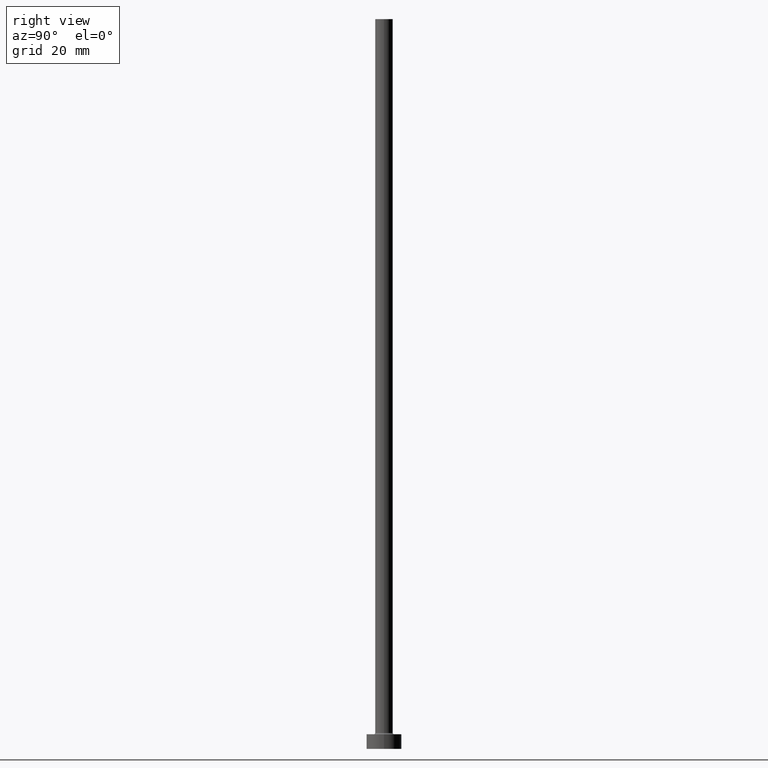
[diagram: clean part render]
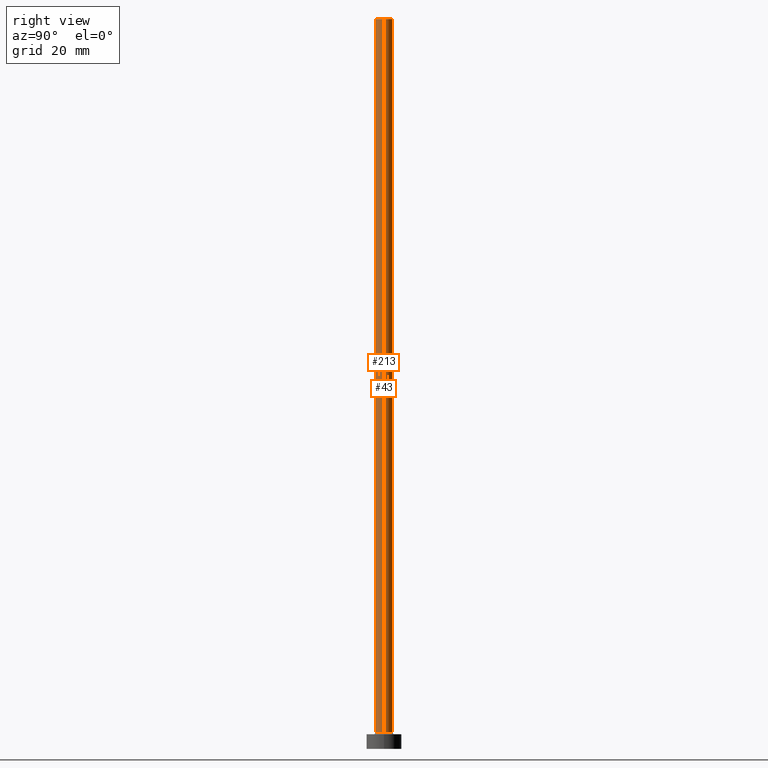
[diagram: same view with one multi-face feature highlighted, each face labeled with its STEP entity id]
A machine part, right view. The highlighted faces form ONE feature: a constant-radius fillet chain: 2 tangent blend faces with common blend radius 3 mm. The faces share edges in the B-rep.
Their STEP definitions:
[1] entity #43 (Cylinder):
#10 = EDGE_CURVE ( 'NONE', #300, #332, #76, .T. ) ;
#27 = ORIENTED_EDGE ( 'NONE', *, *, #242, .T. ) ;
#43 = ADVANCED_FACE ( 'NONE', ( #341 ), #342, .T. ) ;
#49 = ORIENTED_EDGE ( 'NONE', *, *, #315, .F. ) ;
#52 = DIRECTION ( 'NONE',  ( -0.000000000000000000, -0.000000000000000000, -1.000000000000000000 ) ) ;
#74 = CIRCLE ( 'NONE', #99, 3.000000000000000444 ) ;
#76 = CIRCLE ( 'NONE', #440, 3.000000000000000444 ) ;
#92 = LINE ( 'NONE', #297, #457 ) ;
#97 = ORIENTED_EDGE ( 'NONE', *, *, #442, .F. ) ;
#99 = AXIS2_PLACEMENT_3D ( 'NONE', #156, #262, #286 ) ;
#101 = VECTOR ( 'NONE', #460, 1000.000000000000000 ) ;
#109 = CARTESIAN_POINT ( 'NONE',  ( 3.000000000000000444, 3.673940397442060361E-16, 250.0000000000000000 ) ) ;
#110 = VERTEX_POINT ( 'NONE', #109 ) ;
#130 = CARTESIAN_POINT ( 'NONE',  ( -3.000000000000000444, 0.000000000000000000, 250.0000000000000000 ) ) ;
#156 = CARTESIAN_POINT ( 'NONE',  ( 0.000000000000000000, 0.000000000000000000, 250.0000000000000000 ) ) ;
#190 = CARTESIAN_POINT ( 'NONE',  ( -3.000000000000000444, 0.000000000000000000, 5.500000000000005329 ) ) ;
#204 = DIRECTION ( 'NONE',  ( 1.000000000000000000, 0.000000000000000000, 0.000000000000000000 ) ) ;
#209 = AXIS2_PLACEMENT_3D ( 'NONE', #336, #340, #378 ) ;
#223 = ORIENTED_EDGE ( 'NONE', *, *, #10, .T. ) ;
#236 = CARTESIAN_POINT ( 'NONE',  ( 3.000000000000000444, 3.673940397442060361E-16, 5.500000000000005329 ) ) ;
#242 = EDGE_CURVE ( 'NONE', #110, #300, #398, .T. ) ;
#262 = DIRECTION ( 'NONE',  ( 0.000000000000000000, 0.000000000000000000, 1.000000000000000000 ) ) ;
#286 = DIRECTION ( 'NONE',  ( 1.000000000000000000, 0.000000000000000000, 0.000000000000000000 ) ) ;
#297 = CARTESIAN_POINT ( 'NONE',  ( -3.000000000000000444, 0.000000000000000000, 250.0000000000000000 ) ) ;
#300 = VERTEX_POINT ( 'NONE', #236 ) ;
#315 = EDGE_CURVE ( 'NONE', #388, #332, #92, .T. ) ;
#316 = CARTESIAN_POINT ( 'NONE',  ( 3.000000000000000444, 3.673940397442060361E-16, 250.0000000000000000 ) ) ;
#332 = VERTEX_POINT ( 'NONE', #190 ) ;
#336 = CARTESIAN_POINT ( 'NONE',  ( 0.000000000000000000, 0.000000000000000000, 250.0000000000000000 ) ) ;
#340 = DIRECTION ( 'NONE',  ( -0.000000000000000000, -0.000000000000000000, -1.000000000000000000 ) ) ;
#341 = FACE_OUTER_BOUND ( 'NONE', #369, .T. ) ;
#342 = CYLINDRICAL_SURFACE ( 'NONE', #209, 3.000000000000000444 ) ;
#369 = EDGE_LOOP ( 'NONE', ( #97, #27, #223, #49 ) ) ;
#376 = CARTESIAN_POINT ( 'NONE',  ( 0.000000000000000000, 0.000000000000000000, 5.500000000000005329 ) ) ;
#378 = DIRECTION ( 'NONE',  ( -1.000000000000000000, 0.000000000000000000, 0.000000000000000000 ) ) ;
#388 = VERTEX_POINT ( 'NONE', #130 ) ;
#398 = LINE ( 'NONE', #316, #101 ) ;
#440 = AXIS2_PLACEMENT_3D ( 'NONE', #376, #450, #204 ) ;
#442 = EDGE_CURVE ( 'NONE', #110, #388, #74, .T. ) ;
#450 = DIRECTION ( 'NONE',  ( 0.000000000000000000, 0.000000000000000000, 1.000000000000000000 ) ) ;
#457 = VECTOR ( 'NONE', #52, 1000.000000000000000 ) ;
#460 = DIRECTION ( 'NONE',  ( -0.000000000000000000, -0.000000000000000000, -1.000000000000000000 ) ) ;
[2] entity #213 (Cylinder):
#36 = DIRECTION ( 'NONE',  ( 0.000000000000000000, 0.000000000000000000, 1.000000000000000000 ) ) ;
#38 = DIRECTION ( 'NONE',  ( -1.000000000000000000, 0.000000000000000000, 0.000000000000000000 ) ) ;
#46 = DIRECTION ( 'NONE',  ( -0.000000000000000000, -0.000000000000000000, -1.000000000000000000 ) ) ;
#52 = DIRECTION ( 'NONE',  ( -0.000000000000000000, -0.000000000000000000, -1.000000000000000000 ) ) ;
#70 = DIRECTION ( 'NONE',  ( 1.000000000000000000, 0.000000000000000000, 0.000000000000000000 ) ) ;
#81 = DIRECTION ( 'NONE',  ( 0.000000000000000000, 0.000000000000000000, 1.000000000000000000 ) ) ;
#92 = LINE ( 'NONE', #297, #457 ) ;
#101 = VECTOR ( 'NONE', #460, 1000.000000000000000 ) ;
#109 = CARTESIAN_POINT ( 'NONE',  ( 3.000000000000000444, 3.673940397442060361E-16, 250.0000000000000000 ) ) ;
#110 = VERTEX_POINT ( 'NONE', #109 ) ;
#120 = EDGE_CURVE ( 'NONE', #388, #110, #331, .T. ) ;
#123 = FACE_OUTER_BOUND ( 'NONE', #249, .T. ) ;
#130 = CARTESIAN_POINT ( 'NONE',  ( -3.000000000000000444, 0.000000000000000000, 250.0000000000000000 ) ) ;
#175 = AXIS2_PLACEMENT_3D ( 'NONE', #292, #81, #244 ) ;
#185 = ORIENTED_EDGE ( 'NONE', *, *, #242, .F. ) ;
#190 = CARTESIAN_POINT ( 'NONE',  ( -3.000000000000000444, 0.000000000000000000, 5.500000000000005329 ) ) ;
#193 = CIRCLE ( 'NONE', #419, 3.000000000000000444 ) ;
#195 = ORIENTED_EDGE ( 'NONE', *, *, #253, .T. ) ;
#213 = ADVANCED_FACE ( 'NONE', ( #123 ), #285, .T. ) ;
#228 = ORIENTED_EDGE ( 'NONE', *, *, #315, .T. ) ;
#236 = CARTESIAN_POINT ( 'NONE',  ( 3.000000000000000444, 3.673940397442060361E-16, 5.500000000000005329 ) ) ;
#242 = EDGE_CURVE ( 'NONE', #110, #300, #398, .T. ) ;
#244 = DIRECTION ( 'NONE',  ( 1.000000000000000000, 0.000000000000000000, 0.000000000000000000 ) ) ;
#249 = EDGE_LOOP ( 'NONE', ( #185, #391, #228, #195 ) ) ;
#253 = EDGE_CURVE ( 'NONE', #332, #300, #193, .T. ) ;
#285 = CYLINDRICAL_SURFACE ( 'NONE', #296, 3.000000000000000444 ) ;
#292 = CARTESIAN_POINT ( 'NONE',  ( 0.000000000000000000, 0.000000000000000000, 250.0000000000000000 ) ) ;
#296 = AXIS2_PLACEMENT_3D ( 'NONE', #437, #46, #38 ) ;
#297 = CARTESIAN_POINT ( 'NONE',  ( -3.000000000000000444, 0.000000000000000000, 250.0000000000000000 ) ) ;
#300 = VERTEX_POINT ( 'NONE', #236 ) ;
#315 = EDGE_CURVE ( 'NONE', #388, #332, #92, .T. ) ;
#316 = CARTESIAN_POINT ( 'NONE',  ( 3.000000000000000444, 3.673940397442060361E-16, 250.0000000000000000 ) ) ;
#331 = CIRCLE ( 'NONE', #175, 3.000000000000000444 ) ;
#332 = VERTEX_POINT ( 'NONE', #190 ) ;
#385 = CARTESIAN_POINT ( 'NONE',  ( 0.000000000000000000, 0.000000000000000000, 5.500000000000005329 ) ) ;
#388 = VERTEX_POINT ( 'NONE', #130 ) ;
#391 = ORIENTED_EDGE ( 'NONE', *, *, #120, .F. ) ;
#398 = LINE ( 'NONE', #316, #101 ) ;
#419 = AXIS2_PLACEMENT_3D ( 'NONE', #385, #36, #70 ) ;
#437 = CARTESIAN_POINT ( 'NONE',  ( 0.000000000000000000, 0.000000000000000000, 250.0000000000000000 ) ) ;
#457 = VECTOR ( 'NONE', #52, 1000.000000000000000 ) ;
#460 = DIRECTION ( 'NONE',  ( -0.000000000000000000, -0.000000000000000000, -1.000000000000000000 ) ) ;